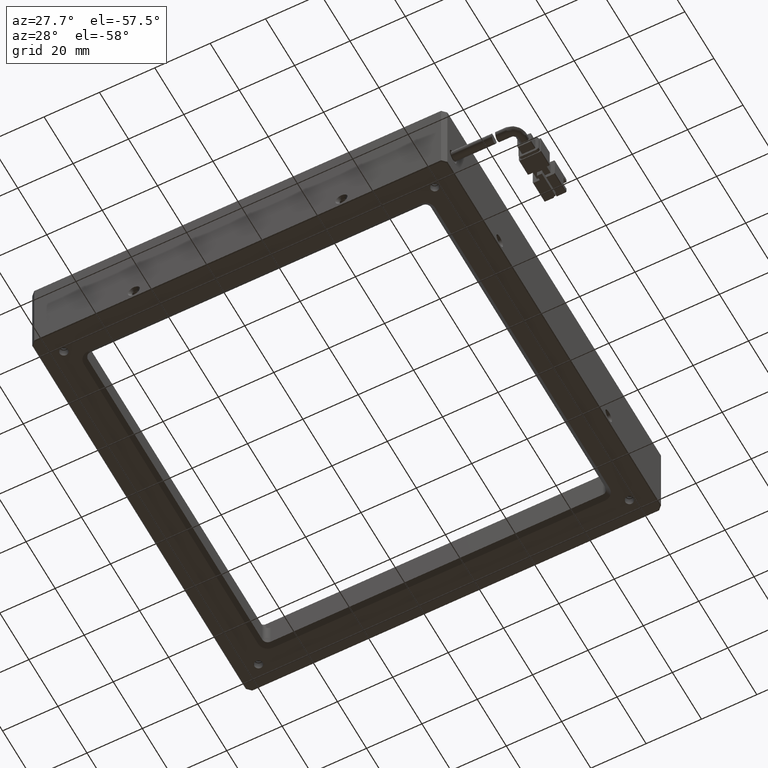
[diagram: clean part render]
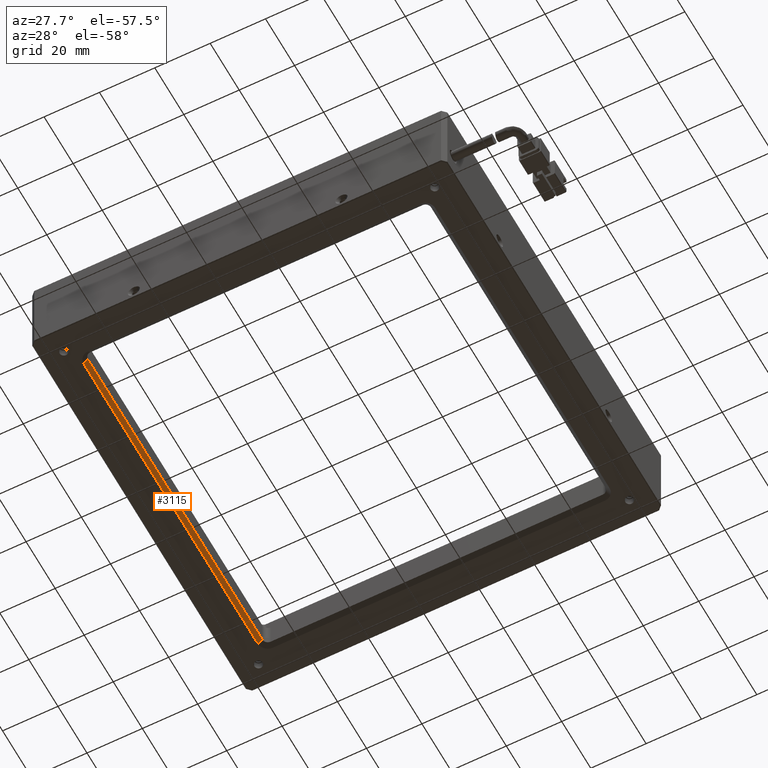
[diagram: same view with one face highlighted and labeled with its STEP entity id]
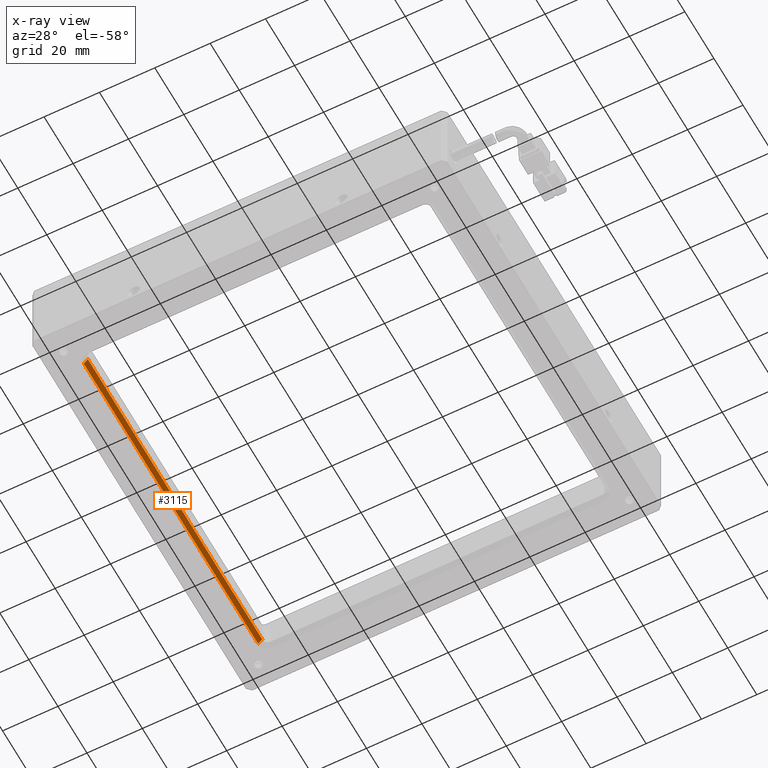
[diagram: x-ray of the same camera — body ghosted, the highlighted face saturated]
A machine part, auxiliary view. The second image highlights one B-rep face of the part: STEP entity #3115.
The next image is the same camera in x-ray: the body ghosted, the highlighted face saturated — about 0% of this face is hidden behind the body in this view.
In plain terms, the highlighted planar face has unit normal (-0.7071, 0, 0.7071).
Its self-contained STEP definition (entity closure, byte-faithful):
#168 = EDGE_CURVE ( 'NONE', #3944, #13474, #6820, .T. ) ;
#605 = CARTESIAN_POINT ( 'NONE',  ( -73.33175061932055900, 70.74938067712632500, -4.999999999997664100 ) ) ;
#607 = VECTOR ( 'NONE', #12972, 1000.000000000000000 ) ;
#1400 = CARTESIAN_POINT ( 'NONE',  ( -71.83175061930524000, 70.74938067712632500, -3.499999999993462100 ) ) ;
#2523 = CARTESIAN_POINT ( 'NONE',  ( -71.83175061932286100, 72.74938067712632500, -3.499999999999948000 ) ) ;
#2598 = VECTOR ( 'NONE', #9745, 1000.000000000000000 ) ;
#2644 = VECTOR ( 'NONE', #17053, 1000.000000000000000 ) ;
#3115 = ADVANCED_FACE ( 'NONE', ( #11330 ), #6302, .F. ) ;
#3654 = DIRECTION ( 'NONE',  ( -0.7071067811865496800, 1.187065870980680600E-016, 0.7071067811865453500 ) ) ;
#3786 = ORIENTED_EDGE ( 'NONE', *, *, #14368, .T. ) ;
#3944 = VERTEX_POINT ( 'NONE', #1400 ) ;
#4029 = CARTESIAN_POINT ( 'NONE',  ( -71.83175061928763200, -49.25061932287366800, -3.499999999986978000 ) ) ;
#5394 = VECTOR ( 'NONE', #18313, 1000.000000000000000 ) ;
#6004 = CARTESIAN_POINT ( 'NONE',  ( -71.83175061932284700, 72.74938067712632500, -3.499999999999937800 ) ) ;
#6302 = PLANE ( 'NONE',  #18273 ) ;
#6820 = LINE ( 'NONE', #9698, #2598 ) ;
#7482 = DIRECTION ( 'NONE',  ( 0.7071067811865453500, 0.0000000000000000000, 0.7071067811865496800 ) ) ;
#8287 = CARTESIAN_POINT ( 'NONE',  ( -499026.4832460621800, -49.25061932287366800, -498958.1514954423200 ) ) ;
#8971 = LINE ( 'NONE', #8287, #607 ) ;
#9456 = EDGE_LOOP ( 'NONE', ( #15183, #16884, #14702, #3786 ) ) ;
#9698 = CARTESIAN_POINT ( 'NONE',  ( -71.83175061932284700, 70.74938067712632500, -3.499999999999937800 ) ) ;
#9745 = DIRECTION ( 'NONE',  ( -0.7071067811865453500, -0.0000000000000000000, -0.7071067811865496800 ) ) ;
#11274 = VERTEX_POINT ( 'NONE', #16218 ) ;
#11330 = FACE_OUTER_BOUND ( 'NONE', #9456, .T. ) ;
#12972 = DIRECTION ( 'NONE',  ( -0.7071067811865479100, -0.0000000000000000000, -0.7071067811865471300 ) ) ;
#13190 = LINE ( 'NONE', #2523, #5394 ) ;
#13474 = VERTEX_POINT ( 'NONE', #605 ) ;
#14368 = EDGE_CURVE ( 'NONE', #16274, #11274, #8971, .T. ) ;
#14702 = ORIENTED_EDGE ( 'NONE', *, *, #16342, .F. ) ;
#15183 = ORIENTED_EDGE ( 'NONE', *, *, #16428, .F. ) ;
#16218 = CARTESIAN_POINT ( 'NONE',  ( -73.33175061932604400, -49.25061932287366800, -5.000000000010739000 ) ) ;
#16274 = VERTEX_POINT ( 'NONE', #4029 ) ;
#16342 = EDGE_CURVE ( 'NONE', #16274, #3944, #13190, .T. ) ;
#16428 = EDGE_CURVE ( 'NONE', #13474, #11274, #18946, .T. ) ;
#16884 = ORIENTED_EDGE ( 'NONE', *, *, #168, .F. ) ;
#17053 = DIRECTION ( 'NONE',  ( -0.0000000000000000000, -1.000000000000000000, -0.0000000000000000000 ) ) ;
#18273 = AXIS2_PLACEMENT_3D ( 'NONE', #6004, #3654, #7482 ) ;
#18313 = DIRECTION ( 'NONE',  ( 8.393823270855570500E-017, 1.000000000000000000, -8.393823270855520000E-017 ) ) ;
#18946 = LINE ( 'NONE', #20111, #2644 ) ;
#20111 = CARTESIAN_POINT ( 'NONE',  ( -73.33175061932283300, -64.25061932287364600, -4.999999999999938700 ) ) ;